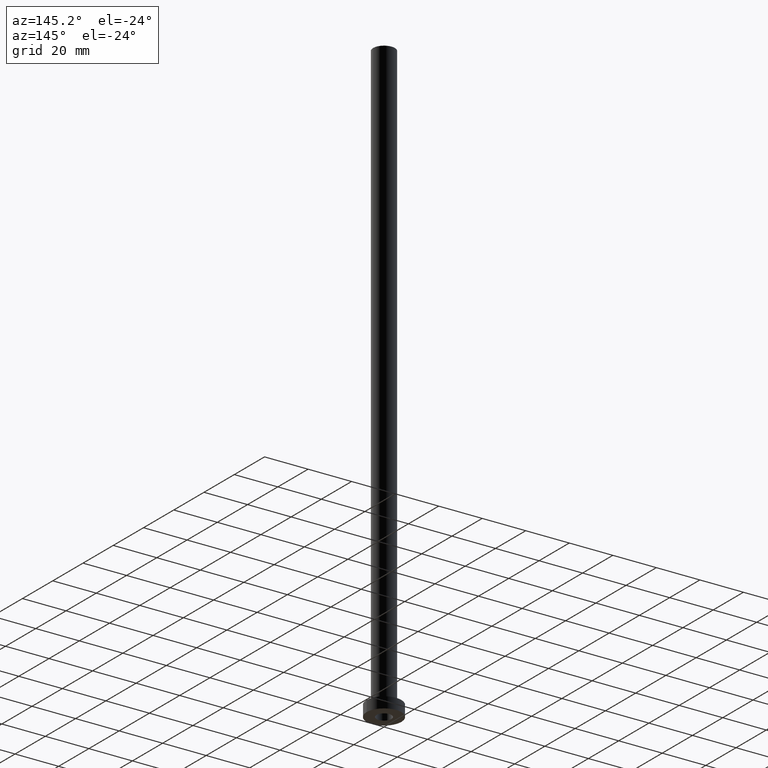
[diagram: clean part render]
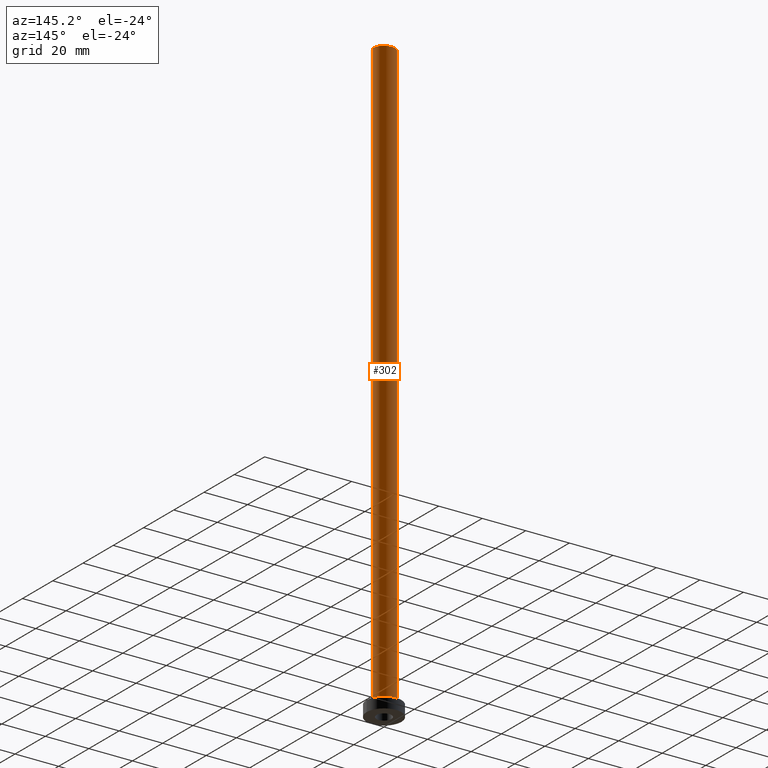
[diagram: same view with one face highlighted and labeled with its STEP entity id]
A machine part, auxiliary view. The second image highlights one B-rep face of the part: STEP entity #302.
In plain terms, the highlighted cylindrical surface (edge-blend (fillet) strip) has radius 5 mm, axis along (-0, -0, -1).
Its self-contained STEP definition (entity closure, byte-faithful):
#7 = VECTOR ( 'NONE', #149, 1000.000000000000000 ) ;
#13 = DIRECTION ( 'NONE',  ( -0.000000000000000000, -0.000000000000000000, -1.000000000000000000 ) ) ;
#17 = VERTEX_POINT ( 'NONE', #35 ) ;
#25 = ORIENTED_EDGE ( 'NONE', *, *, #196, .F. ) ;
#31 = DIRECTION ( 'NONE',  ( 0.000000000000000000, 0.000000000000000000, 1.000000000000000000 ) ) ;
#34 = LINE ( 'NONE', #174, #128 ) ;
#35 = CARTESIAN_POINT ( 'NONE',  ( 5.000000000000000000, 6.123233995736766282E-16, 5.500000000000005329 ) ) ;
#48 = ORIENTED_EDGE ( 'NONE', *, *, #254, .F. ) ;
#66 = AXIS2_PLACEMENT_3D ( 'NONE', #323, #450, #326 ) ;
#69 = CARTESIAN_POINT ( 'NONE',  ( 5.000000000000000000, 6.123233995736766282E-16, 275.0000000000000000 ) ) ;
#82 = DIRECTION ( 'NONE',  ( -1.000000000000000000, 0.000000000000000000, 0.000000000000000000 ) ) ;
#83 = VERTEX_POINT ( 'NONE', #69 ) ;
#88 = VERTEX_POINT ( 'NONE', #209 ) ;
#101 = ORIENTED_EDGE ( 'NONE', *, *, #140, .T. ) ;
#111 = CARTESIAN_POINT ( 'NONE',  ( -5.000000000000000000, 0.000000000000000000, 275.0000000000000000 ) ) ;
#117 = FACE_OUTER_BOUND ( 'NONE', #272, .T. ) ;
#128 = VECTOR ( 'NONE', #314, 1000.000000000000000 ) ;
#140 = EDGE_CURVE ( 'NONE', #17, #208, #414, .T. ) ;
#149 = DIRECTION ( 'NONE',  ( -0.000000000000000000, -0.000000000000000000, -1.000000000000000000 ) ) ;
#174 = CARTESIAN_POINT ( 'NONE',  ( 5.000000000000000000, 6.123233995736766282E-16, 275.0000000000000000 ) ) ;
#178 = DIRECTION ( 'NONE',  ( 1.000000000000000000, 0.000000000000000000, 0.000000000000000000 ) ) ;
#196 = EDGE_CURVE ( 'NONE', #88, #208, #361, .T. ) ;
#208 = VERTEX_POINT ( 'NONE', #289 ) ;
#209 = CARTESIAN_POINT ( 'NONE',  ( -5.000000000000000000, 0.000000000000000000, 275.0000000000000000 ) ) ;
#221 = CIRCLE ( 'NONE', #229, 5.000000000000000000 ) ;
#229 = AXIS2_PLACEMENT_3D ( 'NONE', #354, #31, #178 ) ;
#240 = EDGE_CURVE ( 'NONE', #83, #17, #34, .T. ) ;
#254 = EDGE_CURVE ( 'NONE', #83, #88, #221, .T. ) ;
#272 = EDGE_LOOP ( 'NONE', ( #48, #290, #101, #25 ) ) ;
#289 = CARTESIAN_POINT ( 'NONE',  ( -5.000000000000000000, 0.000000000000000000, 5.500000000000005329 ) ) ;
#290 = ORIENTED_EDGE ( 'NONE', *, *, #240, .T. ) ;
#302 = ADVANCED_FACE ( 'NONE', ( #117 ), #397, .T. ) ;
#314 = DIRECTION ( 'NONE',  ( -0.000000000000000000, -0.000000000000000000, -1.000000000000000000 ) ) ;
#323 = CARTESIAN_POINT ( 'NONE',  ( 0.000000000000000000, 0.000000000000000000, 5.500000000000005329 ) ) ;
#326 = DIRECTION ( 'NONE',  ( 1.000000000000000000, 0.000000000000000000, 0.000000000000000000 ) ) ;
#334 = CARTESIAN_POINT ( 'NONE',  ( 0.000000000000000000, 0.000000000000000000, 275.0000000000000000 ) ) ;
#354 = CARTESIAN_POINT ( 'NONE',  ( 0.000000000000000000, 0.000000000000000000, 275.0000000000000000 ) ) ;
#361 = LINE ( 'NONE', #111, #7 ) ;
#388 = AXIS2_PLACEMENT_3D ( 'NONE', #334, #13, #82 ) ;
#397 = CYLINDRICAL_SURFACE ( 'NONE', #388, 5.000000000000000000 ) ;
#414 = CIRCLE ( 'NONE', #66, 5.000000000000000000 ) ;
#450 = DIRECTION ( 'NONE',  ( 0.000000000000000000, 0.000000000000000000, 1.000000000000000000 ) ) ;